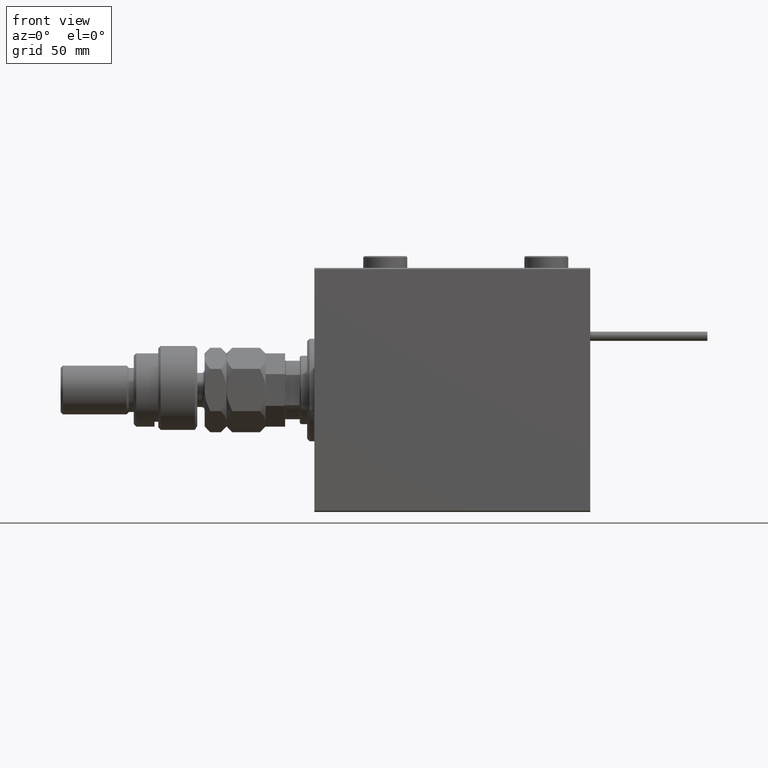
[diagram: clean part render]
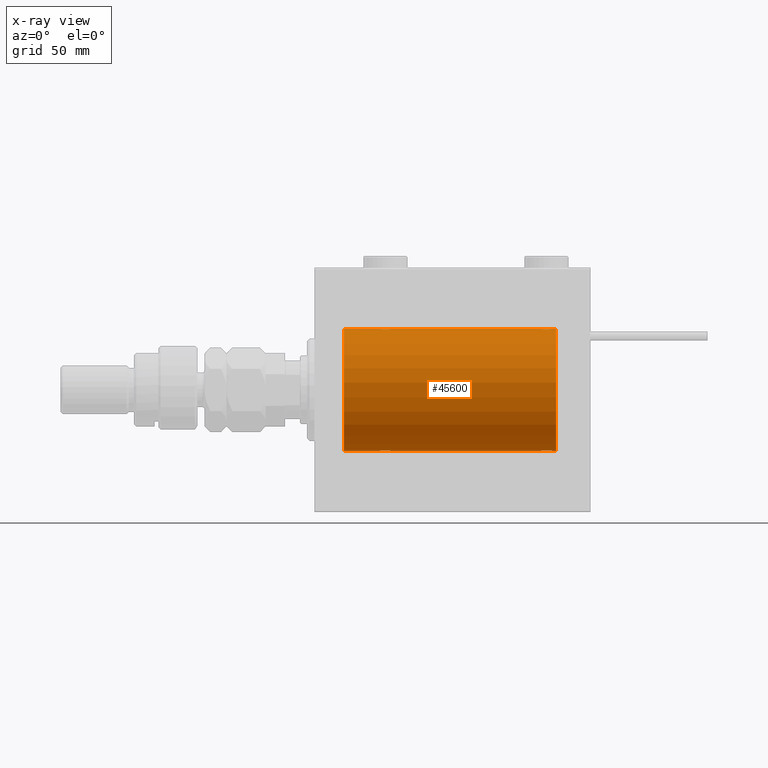
[diagram: x-ray — body ghosted, one internal face saturated and labeled with its STEP entity id]
A machine part, front view, then the same camera in x-ray: the body is ghosted and one INTERNAL B-rep face — a face not visible from any outside direction — is saturated and labeled: STEP entity #45600.
In plain terms, the highlighted cylindrical surface (partial cylindrical patch) has radius 25 mm, axis along (-1, -0, -0).
Its self-contained STEP definition (entity closure, byte-faithful):
#64 = CARTESIAN_POINT ( 'NONE',  ( 30.88412382786471611, -1.651251241585095508, -24.94567559498348785 ) ) ;
#119 = CARTESIAN_POINT ( 'NONE',  ( 29.16323589638543723, -2.500125740978195843, 24.87467329022545570 ) ) ;
#156 = CARTESIAN_POINT ( 'NONE',  ( 92.51582159942343253, -0.3254210271412230071, 24.99840249400844883 ) ) ;
#424 = ORIENTED_EDGE ( 'NONE', *, *, #6315, .T. ) ;
#1042 = EDGE_CURVE ( 'NONE', #45689, #22122, #2839, .T. ) ;
#1236 = EDGE_CURVE ( 'NONE', #34088, #19600, #19056, .T. ) ;
#1266 = CARTESIAN_POINT ( 'NONE',  ( 95.80788342405807612, -2.371528299825745645, -24.88734287464371420 ) ) ;
#1831 = CARTESIAN_POINT ( 'NONE',  ( 92.50000000000000000, -1.940163953345817485E-23, 25.00000000000000000 ) ) ;
#2367 = LINE ( 'NONE', #40937, #22136 ) ;
#2839 = LINE ( 'NONE', #52718, #47201 ) ;
#3058 = CARTESIAN_POINT ( 'NONE',  ( 92.50000000000000000, -5.047181518224410404E-15, -25.00000000000000000 ) ) ;
#3458 = CARTESIAN_POINT ( 'NONE',  ( 26.75239748980449761, -1.106703319666885399, 24.97594585958023572 ) ) ;
#3494 = CARTESIAN_POINT ( 'NONE',  ( 95.32596570039463302, -2.484007091859760763, 24.87630842367763861 ) ) ;
#3666 = CARTESIAN_POINT ( 'NONE',  ( 31.42014909220928942, -0.6480119923854186226, -24.99212088949390420 ) ) ;
#3755 = CARTESIAN_POINT ( 'NONE',  ( 94.35095609830902674, -2.419770561643906248, 24.88263927071751169 ) ) ;
#3854 = VECTOR ( 'NONE', #6329, 1000.000000000000000 ) ;
#3931 = CARTESIAN_POINT ( 'NONE',  ( 27.89276154161590426, -2.247417070759891278, -24.89885693081946272 ) ) ;
#4011 = CARTESIAN_POINT ( 'NONE',  ( 97.50000000000002842, -0.3305063766663752789, 25.00000000000000711 ) ) ;
#4552 = CARTESIAN_POINT ( 'NONE',  ( 92.62784030591393503, -0.8058335233485491855, 24.98746277938383287 ) ) ;
#4730 = CARTESIAN_POINT ( 'NONE',  ( 28.19564339083697746, -2.372734907014167671, -24.88722742718433167 ) ) ;
#5010 = CARTESIAN_POINT ( 'NONE',  ( 30.52536182243080631, -1.987446652080256504, -24.92104239223419881 ) ) ;
#5077 = B_SPLINE_CURVE_WITH_KNOTS ( 'NONE', 3,
 ( #20778, #50809, #53878, #33734, #29859, #3458, #54145, #20247, #29052, #49995, #8941, #50535, #50264, #17188, #45594, #37055, #13075, #119, #37598, #16388, #49727, #7864, #24661, #46400, #41203, #25191, #16122, #12794, #11995, #41468, #46129, #8673 ),
 .UNSPECIFIED., .F., .F.,
 ( 4, 2, 2, 2, 2, 2, 2, 2, 2, 2, 2, 2, 2, 2, 2, 4 ),
 ( 0.007821024441662275534, 0.008309723826317880202, 0.008798423210973486605, 0.009287122595629093008, 0.009775821980284697676, 0.01026452136494030234, 0.01075322074959590875, 0.01124192013425151515, 0.01173061951890711982, 0.01221931890356272449, 0.01270801828821833089, 0.01319671767287393729, 0.01368541705752954196, 0.01417411644218514663, 0.01466281582684075303, 0.01564021459615196410 ),
 .UNSPECIFIED. ) ;
#5390 = CARTESIAN_POINT ( 'NONE',  ( 96.98749815834395349, -1.525407911884357315, -24.95379469572362297 ) ) ;
#5675 = CARTESIAN_POINT ( 'NONE',  ( 92.50000000000000000, -5.047181518224410404E-15, -25.00000000000000000 ) ) ;
#5722 = VERTEX_POINT ( 'NONE', #7492 ) ;
#6315 = EDGE_CURVE ( 'NONE', #45689, #36800, #46123, .T. ) ;
#6329 = DIRECTION ( 'NONE',  ( -1.000000000000000000, -0.000000000000000000, -0.000000000000000000 ) ) ;
#6766 = DIRECTION ( 'NONE',  ( -1.000000000000000000, -0.000000000000000000, -0.000000000000000000 ) ) ;
#7492 = CARTESIAN_POINT ( 'NONE',  ( 99.00000000000000000, 3.061616997868383043E-15, -25.00000000000000000 ) ) ;
#7508 = ORIENTED_EDGE ( 'NONE', *, *, #51336, .T. ) ;
#7598 = ORIENTED_EDGE ( 'NONE', *, *, #1042, .F. ) ;
#7630 = CARTESIAN_POINT ( 'NONE',  ( 93.88963203491134379, -2.245863995402899160, 24.89899750494197050 ) ) ;
#7864 = CARTESIAN_POINT ( 'NONE',  ( 30.10723845838410284, -2.247417070759897495, 24.89885693081946272 ) ) ;
#8167 = CARTESIAN_POINT ( 'NONE',  ( 97.50000000000000000, 2.791216707898424283E-15, 25.00000000000000000 ) ) ;
#8435 = CARTESIAN_POINT ( 'NONE',  ( 95.16323589638543012, -2.500125740978193178, 24.87467329022545925 ) ) ;
#8564 = VECTOR ( 'NONE', #6766, 1000.000000000000000 ) ;
#8619 = CARTESIAN_POINT ( 'NONE',  ( 29.16706495178059910, -2.499872792855075687, -24.87469871246081965 ) ) ;
#8673 = CARTESIAN_POINT ( 'NONE',  ( 31.50000000000000000, -3.359922002512890391E-15, 25.00000000000000000 ) ) ;
#8712 = CARTESIAN_POINT ( 'NONE',  ( 96.25084023924055998, -2.170728182476715951, 24.90574631553725027 ) ) ;
#8761 = VERTEX_POINT ( 'NONE', #47956 ) ;
#8879 = AXIS2_PLACEMENT_3D ( 'NONE', #15415, #53164, #44883 ) ;
#8885 = CARTESIAN_POINT ( 'NONE',  ( 30.25383195424503313, -2.169003991399864884, -24.90589728951138682 ) ) ;
#8941 = CARTESIAN_POINT ( 'NONE',  ( 27.47463817756919369, -1.987446652080264720, 24.92104239223420592 ) ) ;
#9322 = CARTESIAN_POINT ( 'NONE',  ( 99.00000000000000000, 0.000000000000000000, 25.00000000000000000 ) ) ;
#9542 = CARTESIAN_POINT ( 'NONE',  ( 95.16706495178058844, -2.499872792855078796, -24.87469871246082320 ) ) ;
#10093 = CARTESIAN_POINT ( 'NONE',  ( 92.50000000000000000, -0.3305063766663816072, -25.00000000000000355 ) ) ;
#10359 = CARTESIAN_POINT ( 'NONE',  ( 93.11814045851355104, -1.653834020452941589, -24.94550385189584318 ) ) ;
#11043 = DIRECTION ( 'NONE',  ( -1.000000000000000000, 0.000000000000000000, 0.000000000000000000 ) ) ;
#11550 = EDGE_CURVE ( 'NONE', #51907, #22122, #5077, .T. ) ;
#11551 = LINE ( 'NONE', #15947, #17938 ) ;
#11940 = CARTESIAN_POINT ( 'NONE',  ( 31.49999999999999289, -0.1631750940176170117, -25.00000000000000711 ) ) ;
#11995 = CARTESIAN_POINT ( 'NONE',  ( 31.24606379094067066, -1.109818057797417046, 24.97580694515541921 ) ) ;
#12000 = ORIENTED_EDGE ( 'NONE', *, *, #24524, .T. ) ;
#12210 = CARTESIAN_POINT ( 'NONE',  ( 31.48417840057656747, -0.3254210271412188993, -24.99840249400844883 ) ) ;
#12794 = CARTESIAN_POINT ( 'NONE',  ( 31.16827641493957302, -1.255214705003183440, 24.96884293994578385 ) ) ;
#12835 = CARTESIAN_POINT ( 'NONE',  ( 95.64560666148634027, -2.420689345803754833, 24.88254961038874313 ) ) ;
#13022 = CARTESIAN_POINT ( 'NONE',  ( 26.75393620905933645, -1.109818057797413715, -24.97580694515542277 ) ) ;
#13075 = CARTESIAN_POINT ( 'NONE',  ( 28.83293504821940090, -2.499872792855082793, 24.87469871246082320 ) ) ;
#13637 = VERTEX_POINT ( 'NONE', #17388 ) ;
#13943 = CARTESIAN_POINT ( 'NONE',  ( 96.11036796508865621, -2.245863995402897384, -24.89899750494196695 ) ) ;
#14214 = CARTESIAN_POINT ( 'NONE',  ( 97.37215969408609340, -0.8058335233485464100, -24.98746277938382931 ) ) ;
#14270 = ORIENTED_EDGE ( 'NONE', *, *, #24137, .F. ) ;
#14479 = CARTESIAN_POINT ( 'NONE',  ( 93.47743225659813504, -1.989585286700250588, -24.92087098724766747 ) ) ;
#14587 = CARTESIAN_POINT ( 'NONE',  ( 99.00000000000000000, 3.061616997868383043E-15, -25.00000000000000000 ) ) ;
#15415 = CARTESIAN_POINT ( 'NONE',  ( 99.00000000000000000, 0.000000000000000000, 0.000000000000000000 ) ) ;
#15480 = ORIENTED_EDGE ( 'NONE', *, *, #15895, .T. ) ;
#15583 = ORIENTED_EDGE ( 'NONE', *, *, #15958, .T. ) ;
#15895 = EDGE_CURVE ( 'NONE', #41580, #25004, #30574, .T. ) ;
#15947 = CARTESIAN_POINT ( 'NONE',  ( 99.00000000000000000, 3.061616997868383043E-15, -25.00000000000000000 ) ) ;
#15958 = EDGE_CURVE ( 'NONE', #8761, #34088, #11551, .T. ) ;
#16122 = CARTESIAN_POINT ( 'NONE',  ( 30.98538033717094464, -1.528152964861312801, 24.95362559291378801 ) ) ;
#16156 = CARTESIAN_POINT ( 'NONE',  ( 96.52256774340187917, -1.989585286700241484, 24.92087098724765681 ) ) ;
#16388 = CARTESIAN_POINT ( 'NONE',  ( 29.64560666148631896, -2.420689345803761050, 24.88254961038873958 ) ) ;
#16424 = CARTESIAN_POINT ( 'NONE',  ( 93.47463817756923277, -1.987446652080266496, 24.92104239223421303 ) ) ;
#16868 = CARTESIAN_POINT ( 'NONE',  ( 27.11814045851354393, -1.653834020452933151, -24.94550385189584674 ) ) ;
#16954 = CARTESIAN_POINT ( 'NONE',  ( 96.65121133559114242, -1.884161199660608688, 24.92916496727982434 ) ) ;
#17188 = CARTESIAN_POINT ( 'NONE',  ( 28.19211657594193809, -2.371528299825749198, 24.88734287464370709 ) ) ;
#17388 = CARTESIAN_POINT ( 'NONE',  ( 99.00000000000000000, 0.000000000000000000, 25.00000000000000000 ) ) ;
#17411 = CARTESIAN_POINT ( 'NONE',  ( 26.83172358506042698, -1.255214705003176112, -24.96884293994577320 ) ) ;
#17784 = CARTESIAN_POINT ( 'NONE',  ( 97.50000000000000000, -0.1631750940176186770, -25.00000000000000711 ) ) ;
#17938 = VECTOR ( 'NONE', #53699, 1000.000000000000000 ) ;
#18189 = AXIS2_PLACEMENT_3D ( 'NONE', #48502, #11043, #22619 ) ;
#18343 = CARTESIAN_POINT ( 'NONE',  ( 93.89276154161589716, -2.247417070759898827, -24.89885693081945917 ) ) ;
#18615 = CARTESIAN_POINT ( 'NONE',  ( 95.64904390169098747, -2.419770561643905804, -24.88263927071751169 ) ) ;
#18946 = EDGE_LOOP ( 'NONE', ( #14270, #49675, #12000, #15480, #7508, #15583, #41734, #38398, #20693, #7598, #424, #38654 ) ) ;
#19056 = CIRCLE ( 'NONE', #18189, 25.00000000000000000 ) ;
#19168 = DIRECTION ( 'NONE',  ( -1.000000000000000000, -0.000000000000000000, -0.000000000000000000 ) ) ;
#19431 = CARTESIAN_POINT ( 'NONE',  ( 99.00000000000000000, 3.061616997868383043E-15, -25.00000000000000000 ) ) ;
#19600 = VERTEX_POINT ( 'NONE', #32400 ) ;
#19605 = CARTESIAN_POINT ( 'NONE',  ( 31.50000000000000000, -3.359922002512890391E-15, 25.00000000000000000 ) ) ;
#20247 = CARTESIAN_POINT ( 'NONE',  ( 27.01250184165601809, -1.525407911884367085, 24.95379469572361941 ) ) ;
#20461 = CARTESIAN_POINT ( 'NONE',  ( 31.37215969408608274, -0.8058335233485438565, -24.98746277938383997 ) ) ;
#20548 = CARTESIAN_POINT ( 'NONE',  ( 96.10723845838410284, -2.247417070759893942, 24.89885693081947338 ) ) ;
#20693 = ORIENTED_EDGE ( 'NONE', *, *, #11550, .T. ) ;
#20726 = CARTESIAN_POINT ( 'NONE',  ( 27.74915976075944712, -2.170728182476714174, -24.90574631553725027 ) ) ;
#20778 = CARTESIAN_POINT ( 'NONE',  ( 26.50000000000000355, -1.940558383798427991E-23, 25.00000000000000000 ) ) ;
#20996 = CARTESIAN_POINT ( 'NONE',  ( 30.98749815834397481, -1.525407911884360868, -24.95379469572361941 ) ) ;
#21267 = CARTESIAN_POINT ( 'NONE',  ( 29.80788342405805835, -2.371528299825740760, -24.88734287464371064 ) ) ;
#22122 = VERTEX_POINT ( 'NONE', #19605 ) ;
#22136 = VECTOR ( 'NONE', #19168, 1000.000000000000000 ) ;
#22200 = CARTESIAN_POINT ( 'NONE',  ( 94.67403429960538119, -2.484007091859759431, -24.87630842367762796 ) ) ;
#22619 = DIRECTION ( 'NONE',  ( 0.000000000000000000, 0.000000000000000000, 1.000000000000000000 ) ) ;
#22746 = CARTESIAN_POINT ( 'NONE',  ( 95.32947680114267541, -2.483544361357266972, -24.87635491893501793 ) ) ;
#23013 = CARTESIAN_POINT ( 'NONE',  ( 92.83172358506043054, -1.255214705003182329, -24.96884293994577675 ) ) ;
#24137 = EDGE_CURVE ( 'NONE', #5722, #13637, #51604, .T. ) ;
#24307 = CARTESIAN_POINT ( 'NONE',  ( 31.50000000000000000, 3.061616978460191625E-15, -25.00000000000000000 ) ) ;
#24524 = EDGE_CURVE ( 'NONE', #41821, #41580, #47952, .T. ) ;
#24661 = CARTESIAN_POINT ( 'NONE',  ( 30.25084023924055998, -2.170728182476720391, 24.90574631553725027 ) ) ;
#24700 = CARTESIAN_POINT ( 'NONE',  ( 92.75239748980449406, -1.106703319666886065, 24.97594585958023572 ) ) ;
#24959 = CARTESIAN_POINT ( 'NONE',  ( 93.11587617213531587, -1.651251241585104834, 24.94567559498348785 ) ) ;
#25004 = VERTEX_POINT ( 'NONE', #24307 ) ;
#25140 = CARTESIAN_POINT ( 'NONE',  ( 26.50000000000000355, -1.828402720252098442E-15, -25.00000000000000000 ) ) ;
#25191 = CARTESIAN_POINT ( 'NONE',  ( 30.88185954148645962, -1.653834020452937814, 24.94550385189585029 ) ) ;
#25225 = CARTESIAN_POINT ( 'NONE',  ( 96.98538033717096596, -1.528152964861306806, 24.95362559291379156 ) ) ;
#25413 = CARTESIAN_POINT ( 'NONE',  ( 27.34878866440888601, -1.884161199660611796, -24.92916496727982434 ) ) ;
#25680 = CARTESIAN_POINT ( 'NONE',  ( 28.67403429960539896, -2.484007091859758543, -24.87630842367763151 ) ) ;
#25907 = B_SPLINE_CURVE_WITH_KNOTS ( 'NONE', 3,
 ( #49672, #11940, #12210, #3666, #20461, #54093, #39589, #20996, #64, #29804, #5010, #8885, #46615, #21267, #54362, #46346, #8619, #42211, #25680, #30075, #4730, #3931, #20726, #37539, #25413, #16868, #25955, #17411, #13022, #33679, #29002, #25140 ),
 .UNSPECIFIED., .F., .F.,
 ( 4, 2, 2, 2, 2, 2, 2, 2, 2, 2, 2, 2, 2, 2, 2, 4 ),
 ( 0.007821024441662299820, 0.008309723826317909692, 0.008798423210973517830, 0.009287122595629124233, 0.009775821980284728902, 0.01026452136494033357, 0.01075322074959593997, 0.01124192013425154464, 0.01173061951890715104, 0.01221931890356275571, 0.01270801828821836038, 0.01319671767287396852, 0.01368541705752957319, 0.01417411644218517959, 0.01466281582684078426, 0.01564021459615199533 ),
 .UNSPECIFIED. ) ;
#25955 = CARTESIAN_POINT ( 'NONE',  ( 27.01461966282905891, -1.528152964861306584, -24.95362559291379156 ) ) ;
#26345 = CARTESIAN_POINT ( 'NONE',  ( 97.24760251019552015, -1.106703319666883178, -24.97594585958024282 ) ) ;
#26619 = CARTESIAN_POINT ( 'NONE',  ( 92.75393620905933290, -1.109818057797417268, -24.97580694515541921 ) ) ;
#26676 = DIRECTION ( 'NONE',  ( -1.000000000000000000, -0.000000000000000000, -0.000000000000000000 ) ) ;
#26886 = CARTESIAN_POINT ( 'NONE',  ( 97.48417840057656747, -0.3254210271412207867, -24.99840249400844172 ) ) ;
#26979 = CARTESIAN_POINT ( 'NONE',  ( 97.50000000000000000, 3.061616978466896943E-15, -25.00000000000000000 ) ) ;
#27160 = CARTESIAN_POINT ( 'NONE',  ( 93.74915976075948265, -2.170728182476722612, -24.90574631553725027 ) ) ;
#27701 = LINE ( 'NONE', #19431, #8564 ) ;
#27804 = FACE_OUTER_BOUND ( 'NONE', #18946, .T. ) ;
#28081 = CYLINDRICAL_SURFACE ( 'NONE', #8879, 25.00000000000000000 ) ;
#28561 = CARTESIAN_POINT ( 'NONE',  ( 92.82988709719073483, -1.252049606094332024, 24.96900299967626680 ) ) ;
#28966 = DIRECTION ( 'NONE',  ( -1.000000000000000000, 0.000000000000000000, 0.000000000000000000 ) ) ;
#29002 = CARTESIAN_POINT ( 'NONE',  ( 26.50000000000001066, -0.3305063766663757785, -25.00000000000000355 ) ) ;
#29052 = CARTESIAN_POINT ( 'NONE',  ( 27.11587617213528745, -1.651251241585102836, 24.94567559498349141 ) ) ;
#29804 = CARTESIAN_POINT ( 'NONE',  ( 30.65383336149337623, -1.881857718844709870, -24.92933960374833191 ) ) ;
#29859 = CARTESIAN_POINT ( 'NONE',  ( 26.62784030591392792, -0.8058335233485480753, 24.98746277938383287 ) ) ;
#30075 = CARTESIAN_POINT ( 'NONE',  ( 28.35439333851368815, -2.420689345803754833, -24.88254961038873958 ) ) ;
#30109 = EDGE_CURVE ( 'NONE', #5722, #41821, #27701, .T. ) ;
#30457 = CARTESIAN_POINT ( 'NONE',  ( 96.88412382786474097, -1.651251241585103724, -24.94567559498349141 ) ) ;
#30574 = LINE ( 'NONE', #14587, #3854 ) ;
#30740 = CARTESIAN_POINT ( 'NONE',  ( 93.01461966282907667, -1.528152964861310581, -24.95362559291378091 ) ) ;
#31011 = CARTESIAN_POINT ( 'NONE',  ( 94.83676410361456988, -2.500125740978192734, -24.87467329022545215 ) ) ;
#31375 = EDGE_CURVE ( 'NONE', #13637, #36800, #34664, .T. ) ;
#32400 = CARTESIAN_POINT ( 'NONE',  ( 11.99999999999999645, 0.000000000000000000, 25.00000000000000000 ) ) ;
#32712 = CARTESIAN_POINT ( 'NONE',  ( 26.50000000000000355, -1.940558383798427991E-23, 25.00000000000000000 ) ) ;
#32961 = CARTESIAN_POINT ( 'NONE',  ( 92.50000000000000000, -0.1631750940176218967, 25.00000000000000355 ) ) ;
#33236 = CARTESIAN_POINT ( 'NONE',  ( 97.16827641493955525, -1.255214705003175446, 24.96884293994578030 ) ) ;
#33679 = CARTESIAN_POINT ( 'NONE',  ( 26.56650644760253499, -0.6588655613945862966, -24.99312727339971119 ) ) ;
#33734 = CARTESIAN_POINT ( 'NONE',  ( 26.57985090779070347, -0.6480119923854229524, 24.99212088949390420 ) ) ;
#34088 = VERTEX_POINT ( 'NONE', #51696 ) ;
#34326 = CARTESIAN_POINT ( 'NONE',  ( 97.50000000000000000, 3.061616978466896943E-15, -25.00000000000000000 ) ) ;
#34605 = CARTESIAN_POINT ( 'NONE',  ( 97.42014909220928587, -0.6480119923854202879, -24.99212088949390420 ) ) ;
#34664 = LINE ( 'NONE', #9322, #44677 ) ;
#35156 = CARTESIAN_POINT ( 'NONE',  ( 96.52536182243080987, -1.987446652080264720, -24.92104239223420592 ) ) ;
#36624 = AXIS2_PLACEMENT_3D ( 'NONE', #41109, #28966, #46784 ) ;
#36800 = VERTEX_POINT ( 'NONE', #42002 ) ;
#37055 = CARTESIAN_POINT ( 'NONE',  ( 28.67052319885732103, -2.483544361357271857, 24.87635491893501438 ) ) ;
#37094 = CARTESIAN_POINT ( 'NONE',  ( 92.57985090779071413, -0.6480119923854228414, 24.99212088949390775 ) ) ;
#37357 = CARTESIAN_POINT ( 'NONE',  ( 92.50000000000000000, -1.940163953345817485E-23, 25.00000000000000000 ) ) ;
#37539 = CARTESIAN_POINT ( 'NONE',  ( 27.47743225659810307, -1.989585286700239708, -24.92087098724766392 ) ) ;
#37598 = CARTESIAN_POINT ( 'NONE',  ( 29.32596570039460104, -2.484007091859765204, 24.87630842367763506 ) ) ;
#37902 = CARTESIAN_POINT ( 'NONE',  ( 94.83293504821943998, -2.499872792855080572, 24.87469871246082675 ) ) ;
#38398 = ORIENTED_EDGE ( 'NONE', *, *, #43097, .F. ) ;
#38654 = ORIENTED_EDGE ( 'NONE', *, *, #31375, .F. ) ;
#39002 = CARTESIAN_POINT ( 'NONE',  ( 93.34878866440892864, -1.884161199660620234, -24.92916496727982789 ) ) ;
#39553 = CARTESIAN_POINT ( 'NONE',  ( 97.17011290280923674, -1.252049606094329581, -24.96900299967627035 ) ) ;
#39589 = CARTESIAN_POINT ( 'NONE',  ( 31.17011290280924740, -1.252049606094333578, -24.96900299967627390 ) ) ;
#40937 = CARTESIAN_POINT ( 'NONE',  ( 99.00000000000000000, 0.000000000000000000, 25.00000000000000000 ) ) ;
#41109 = CARTESIAN_POINT ( 'NONE',  ( 99.00000000000000000, 0.000000000000000000, 0.000000000000000000 ) ) ;
#41203 = CARTESIAN_POINT ( 'NONE',  ( 30.65121133559112820, -1.884161199660616459, 24.92916496727982434 ) ) ;
#41242 = CARTESIAN_POINT ( 'NONE',  ( 93.74616804575498463, -2.169003991399871989, 24.90589728951138682 ) ) ;
#41468 = CARTESIAN_POINT ( 'NONE',  ( 31.43349355239747567, -0.6588655613945881839, 24.99312727339970053 ) ) ;
#41509 = CARTESIAN_POINT ( 'NONE',  ( 94.67052319885732459, -2.483544361357268304, 24.87635491893502149 ) ) ;
#41580 = VERTEX_POINT ( 'NONE', #3058 ) ;
#41734 = ORIENTED_EDGE ( 'NONE', *, *, #1236, .T. ) ;
#41821 = VERTEX_POINT ( 'NONE', #26979 ) ;
#42002 = CARTESIAN_POINT ( 'NONE',  ( 97.50000000000000000, 2.791216707898424283E-15, 25.00000000000000000 ) ) ;
#42211 = CARTESIAN_POINT ( 'NONE',  ( 28.83676410361456632, -2.500125740978188738, -24.87467329022545215 ) ) ;
#42306 = CARTESIAN_POINT ( 'NONE',  ( 94.19211657594196652, -2.371528299825746089, 24.88734287464371420 ) ) ;
#43097 = EDGE_CURVE ( 'NONE', #51907, #19600, #2367, .T. ) ;
#43411 = CARTESIAN_POINT ( 'NONE',  ( 92.56650644760253499, -0.6588655613945904044, -24.99312727339970053 ) ) ;
#44156 = DIRECTION ( 'NONE',  ( -1.000000000000000000, -0.000000000000000000, -0.000000000000000000 ) ) ;
#44677 = VECTOR ( 'NONE', #26676, 1000.000000000000000 ) ;
#44883 = DIRECTION ( 'NONE',  ( 0.000000000000000000, 0.000000000000000000, 1.000000000000000000 ) ) ;
#45594 = CARTESIAN_POINT ( 'NONE',  ( 28.35095609830903740, -2.419770561643910689, 24.88263927071751169 ) ) ;
#45600 = ADVANCED_FACE ( 'NONE', ( #27804 ), #28081, .F. ) ;
#45689 = VERTEX_POINT ( 'NONE', #1831 ) ;
#46123 = B_SPLINE_CURVE_WITH_KNOTS ( 'NONE', 3,
 ( #37357, #32961, #156, #37094, #4552, #24700, #28561, #54181, #24959, #49497, #16424, #41242, #7630, #42306, #3755, #41509, #37902, #8435, #3494, #12835, #53913, #20548, #8712, #16156, #16954, #50570, #25225, #33236, #46165, #50036, #4011, #8167 ),
 .UNSPECIFIED., .F., .F.,
 ( 4, 2, 2, 2, 2, 2, 2, 2, 2, 2, 2, 2, 2, 2, 2, 4 ),
 ( 0.007821024441662294616, 0.008309723826317902753, 0.008798423210973510891, 0.009287122595629119029, 0.009775821980284727167, 0.01026452136494033530, 0.01075322074959594344, 0.01124192013425155158, 0.01173061951890715972, 0.01221931890356276786, 0.01270801828821837599, 0.01319671767287398413, 0.01368541705752959400, 0.01417411644218520041, 0.01466281582684080854, 0.01564021459615200921 ),
 .UNSPECIFIED. ) ;
#46129 = CARTESIAN_POINT ( 'NONE',  ( 31.49999999999998579, -0.3305063766663721148, 25.00000000000000000 ) ) ;
#46165 = CARTESIAN_POINT ( 'NONE',  ( 97.24606379094065289, -1.109818057797408608, 24.97580694515542277 ) ) ;
#46346 = CARTESIAN_POINT ( 'NONE',  ( 29.32947680114268962, -2.483544361357264751, -24.87635491893502149 ) ) ;
#46400 = CARTESIAN_POINT ( 'NONE',  ( 30.52256774340189693, -1.989585286700245037, 24.92087098724766747 ) ) ;
#46615 = CARTESIAN_POINT ( 'NONE',  ( 30.11036796508864555, -2.245863995402895164, -24.89899750494197406 ) ) ;
#46784 = DIRECTION ( 'NONE',  ( 0.000000000000000000, 0.000000000000000000, 1.000000000000000000 ) ) ;
#47201 = VECTOR ( 'NONE', #44156, 1000.000000000000000 ) ;
#47264 = CARTESIAN_POINT ( 'NONE',  ( 96.65383336149336913, -1.881857718844717864, -24.92933960374833902 ) ) ;
#47823 = CARTESIAN_POINT ( 'NONE',  ( 94.19564339083697746, -2.372734907014174333, -24.88722742718433878 ) ) ;
#47952 = B_SPLINE_CURVE_WITH_KNOTS ( 'NONE', 3,
 ( #34326, #17784, #26886, #34605, #14214, #26345, #39553, #5390, #30457, #47264, #35156, #48093, #13943, #1266, #18615, #22746, #9542, #31011, #22200, #52225, #47823, #18343, #27160, #14479, #39002, #10359, #30740, #23013, #26619, #43411, #10093, #5675 ),
 .UNSPECIFIED., .F., .F.,
 ( 4, 2, 2, 2, 2, 2, 2, 2, 2, 2, 2, 2, 2, 2, 2, 4 ),
 ( 0.007821024441662296350, 0.008309723826317901019, 0.008798423210973505687, 0.009287122595629112090, 0.009775821980284716758, 0.01026452136494032316, 0.01075322074959592783, 0.01124192013425153250, 0.01173061951890713890, 0.01221931890356274530, 0.01270801828821834824, 0.01319671767287395464, 0.01368541705752955931, 0.01417411644218516398, 0.01466281582684076865, 0.01564021459615199533 ),
 .UNSPECIFIED. ) ;
#47956 = CARTESIAN_POINT ( 'NONE',  ( 26.50000000000000355, -1.828402720252098442E-15, -25.00000000000000000 ) ) ;
#48093 = CARTESIAN_POINT ( 'NONE',  ( 96.25383195424501537, -2.169003991399871545, -24.90589728951138326 ) ) ;
#48502 = CARTESIAN_POINT ( 'NONE',  ( 11.99999999999999645, 0.000000000000000000, 0.000000000000000000 ) ) ;
#49497 = CARTESIAN_POINT ( 'NONE',  ( 93.34616663850661666, -1.881857718844719640, 24.92933960374833902 ) ) ;
#49672 = CARTESIAN_POINT ( 'NONE',  ( 31.50000000000000000, 3.061616978460191625E-15, -25.00000000000000000 ) ) ;
#49675 = ORIENTED_EDGE ( 'NONE', *, *, #30109, .T. ) ;
#49727 = CARTESIAN_POINT ( 'NONE',  ( 29.80435660916301899, -2.372734907014175665, 24.88722742718433878 ) ) ;
#49995 = CARTESIAN_POINT ( 'NONE',  ( 27.34616663850662377, -1.881857718844717642, 24.92933960374833902 ) ) ;
#50036 = CARTESIAN_POINT ( 'NONE',  ( 97.43349355239749343, -0.6588655613945794132, 24.99312727339970053 ) ) ;
#50264 = CARTESIAN_POINT ( 'NONE',  ( 27.88963203491136156, -2.245863995402901381, 24.89899750494197050 ) ) ;
#50535 = CARTESIAN_POINT ( 'NONE',  ( 27.74616804575498108, -2.169003991399871989, 24.90589728951138326 ) ) ;
#50570 = CARTESIAN_POINT ( 'NONE',  ( 96.88185954148646317, -1.653834020452929598, 24.94550385189585029 ) ) ;
#50809 = CARTESIAN_POINT ( 'NONE',  ( 26.50000000000000711, -0.1631750940176214526, 25.00000000000000711 ) ) ;
#51336 = EDGE_CURVE ( 'NONE', #25004, #8761, #25907, .T. ) ;
#51604 = CIRCLE ( 'NONE', #36624, 25.00000000000000000 ) ;
#51696 = CARTESIAN_POINT ( 'NONE',  ( 11.99999999999999645, 3.061616997868383043E-15, -25.00000000000000000 ) ) ;
#51907 = VERTEX_POINT ( 'NONE', #32712 ) ;
#52225 = CARTESIAN_POINT ( 'NONE',  ( 94.35439333851367394, -2.420689345803753501, -24.88254961038873958 ) ) ;
#52718 = CARTESIAN_POINT ( 'NONE',  ( 99.00000000000000000, 0.000000000000000000, 25.00000000000000000 ) ) ;
#53164 = DIRECTION ( 'NONE',  ( -1.000000000000000000, -0.000000000000000000, -0.000000000000000000 ) ) ;
#53699 = DIRECTION ( 'NONE',  ( -1.000000000000000000, -0.000000000000000000, -0.000000000000000000 ) ) ;
#53878 = CARTESIAN_POINT ( 'NONE',  ( 26.51582159942343608, -0.3254210271412225630, 24.99840249400844883 ) ) ;
#53913 = CARTESIAN_POINT ( 'NONE',  ( 95.80435660916305096, -2.372734907014170780, 24.88722742718433523 ) ) ;
#54093 = CARTESIAN_POINT ( 'NONE',  ( 31.24760251019551305, -1.106703319666880514, -24.97594585958023927 ) ) ;
#54145 = CARTESIAN_POINT ( 'NONE',  ( 26.82988709719076681, -1.252049606094339795, 24.96900299967627390 ) ) ;
#54181 = CARTESIAN_POINT ( 'NONE',  ( 93.01250184165606072, -1.525407911884360201, 24.95379469572362297 ) ) ;
#54362 = CARTESIAN_POINT ( 'NONE',  ( 29.64904390169096970, -2.419770561643902695, -24.88263927071750459 ) ) ;